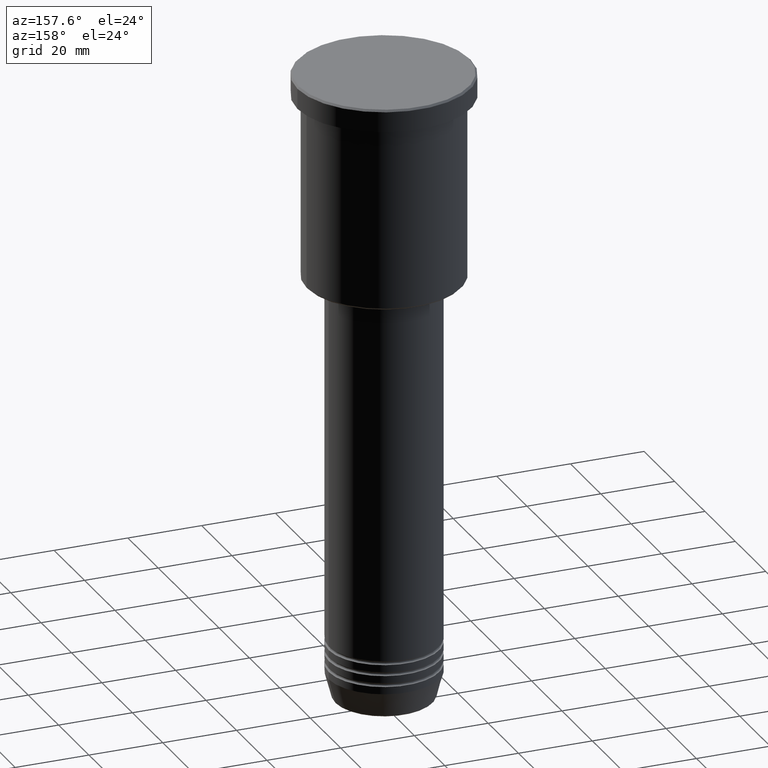
[diagram: clean part render]
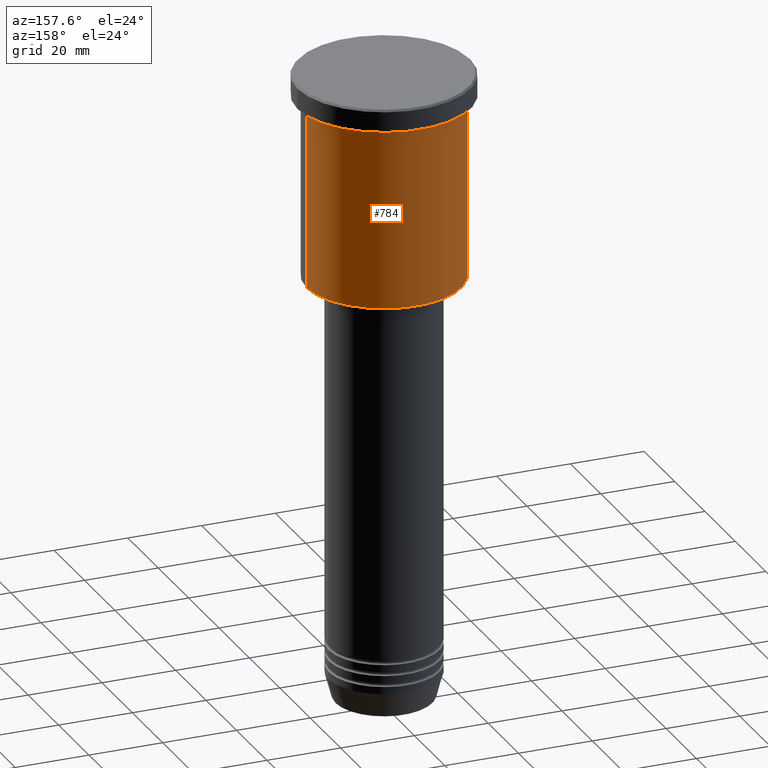
[diagram: same view with one face highlighted and labeled with its STEP entity id]
A machine part, auxiliary view. The second image highlights one B-rep face of the part: STEP entity #784.
In plain terms, the highlighted cylindrical surface (partial cylindrical patch) has radius 21 mm, axis along (-0, -0, 1).
Its self-contained STEP definition (entity closure, byte-faithful):
#30 = DIRECTION ( 'NONE',  ( 1.000000000000000000, 0.000000000000000000, 0.000000000000000000 ) ) ;
#34 = DIRECTION ( 'NONE',  ( -1.000000000000000000, 0.000000000000000000, 0.000000000000000000 ) ) ;
#59 = CARTESIAN_POINT ( 'NONE',  ( 0.000000000000000000, 0.000000000000000000, -55.49999999999996447 ) ) ;
#84 = AXIS2_PLACEMENT_3D ( 'NONE', #678, #399, #424 ) ;
#111 = CYLINDRICAL_SURFACE ( 'NONE', #143, 21.00000000000000000 ) ;
#143 = AXIS2_PLACEMENT_3D ( 'NONE', #302, #403, #30 ) ;
#175 = EDGE_CURVE ( 'NONE', #777, #519, #1049, .T. ) ;
#302 = CARTESIAN_POINT ( 'NONE',  ( 0.000000000000000000, 0.000000000000000000, 0.000000000000000000 ) ) ;
#397 = CARTESIAN_POINT ( 'NONE',  ( -21.00000000000000000, 2.571758278209441661E-15, -55.49999999999996447 ) ) ;
#399 = DIRECTION ( 'NONE',  ( -0.000000000000000000, -0.000000000000000000, 1.000000000000000000 ) ) ;
#403 = DIRECTION ( 'NONE',  ( -0.000000000000000000, -0.000000000000000000, 1.000000000000000000 ) ) ;
#424 = DIRECTION ( 'NONE',  ( 1.000000000000000000, 0.000000000000000000, 0.000000000000000000 ) ) ;
#445 = EDGE_LOOP ( 'NONE', ( #837, #1015, #687, #901 ) ) ;
#479 = VERTEX_POINT ( 'NONE', #557 ) ;
#510 = VECTOR ( 'NONE', #711, 1000.000000000000000 ) ;
#512 = CARTESIAN_POINT ( 'NONE',  ( 21.00000000000000000, 0.000000000000000000, 0.000000000000000000 ) ) ;
#519 = VERTEX_POINT ( 'NONE', #1035 ) ;
#544 = CIRCLE ( 'NONE', #889, 21.00000000000000000 ) ;
#555 = EDGE_CURVE ( 'NONE', #777, #842, #544, .T. ) ;
#557 = CARTESIAN_POINT ( 'NONE',  ( -21.00000000000000000, 2.571758278209441661E-15, -6.999999999999994671 ) ) ;
#574 = EDGE_CURVE ( 'NONE', #519, #479, #601, .T. ) ;
#601 = CIRCLE ( 'NONE', #84, 21.00000000000000000 ) ;
#678 = CARTESIAN_POINT ( 'NONE',  ( 0.000000000000000000, 0.000000000000000000, -6.999999999999994671 ) ) ;
#687 = ORIENTED_EDGE ( 'NONE', *, *, #574, .F. ) ;
#711 = DIRECTION ( 'NONE',  ( -0.000000000000000000, -0.000000000000000000, 1.000000000000000000 ) ) ;
#777 = VERTEX_POINT ( 'NONE', #921 ) ;
#784 = ADVANCED_FACE ( 'NONE', ( #831 ), #111, .T. ) ;
#800 = DIRECTION ( 'NONE',  ( -0.000000000000000000, -0.000000000000000000, 1.000000000000000000 ) ) ;
#831 = FACE_OUTER_BOUND ( 'NONE', #445, .T. ) ;
#837 = ORIENTED_EDGE ( 'NONE', *, *, #555, .T. ) ;
#842 = VERTEX_POINT ( 'NONE', #397 ) ;
#876 = DIRECTION ( 'NONE',  ( -0.000000000000000000, -0.000000000000000000, 1.000000000000000000 ) ) ;
#889 = AXIS2_PLACEMENT_3D ( 'NONE', #59, #800, #34 ) ;
#901 = ORIENTED_EDGE ( 'NONE', *, *, #175, .F. ) ;
#902 = CARTESIAN_POINT ( 'NONE',  ( -21.00000000000000000, 2.571758278209441661E-15, 0.000000000000000000 ) ) ;
#921 = CARTESIAN_POINT ( 'NONE',  ( 21.00000000000000000, 0.000000000000000000, -55.49999999999996447 ) ) ;
#1015 = ORIENTED_EDGE ( 'NONE', *, *, #1140, .T. ) ;
#1035 = CARTESIAN_POINT ( 'NONE',  ( 21.00000000000000000, 0.000000000000000000, -6.999999999999994671 ) ) ;
#1049 = LINE ( 'NONE', #512, #1135 ) ;
#1135 = VECTOR ( 'NONE', #876, 1000.000000000000000 ) ;
#1140 = EDGE_CURVE ( 'NONE', #842, #479, #1180, .T. ) ;
#1180 = LINE ( 'NONE', #902, #510 ) ;